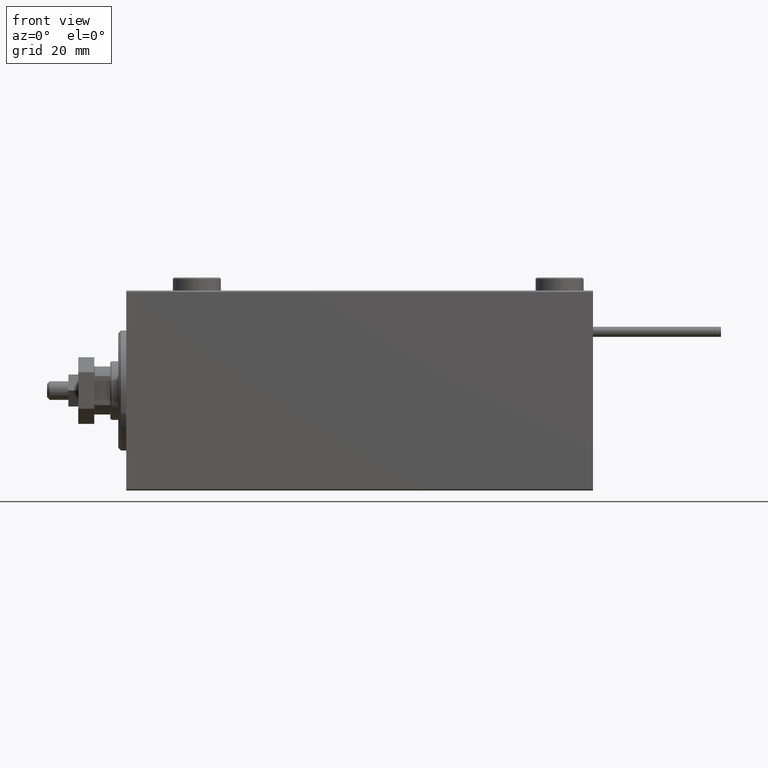
[diagram: clean part render]
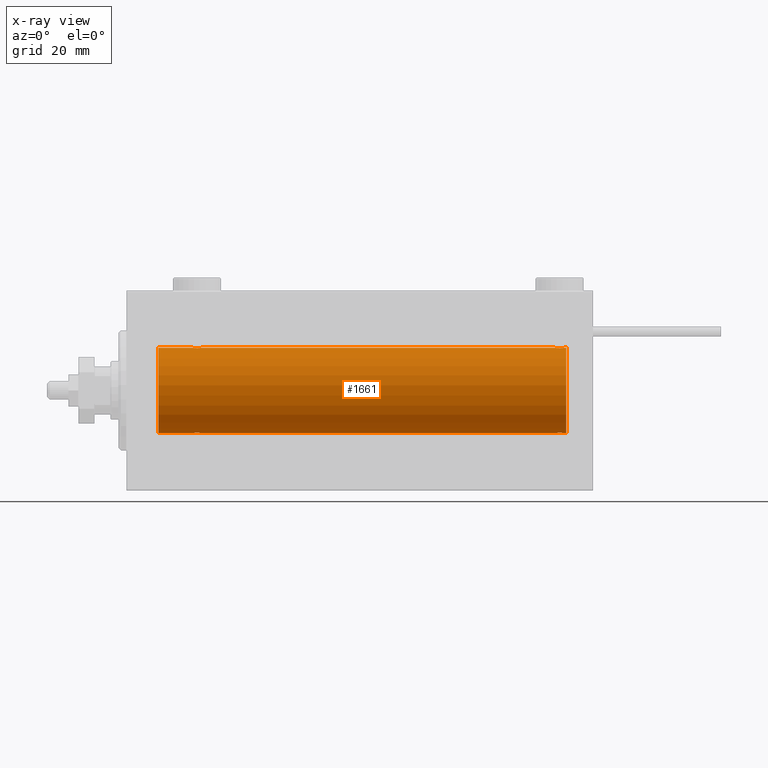
[diagram: x-ray — body ghosted, one internal face saturated and labeled with its STEP entity id]
A machine part, front view, then the same camera in x-ray: the body is ghosted and one INTERNAL B-rep face — a face not visible from any outside direction — is saturated and labeled: STEP entity #1661.
In plain terms, the highlighted cylindrical surface (partial cylindrical patch) has radius 16 mm, axis along (-1, -0, -0).
Its self-contained STEP definition (entity closure, byte-faithful):
#155 = VECTOR ( 'NONE', #7115, 1000.000000000000000 ) ;
#264 = CARTESIAN_POINT ( 'NONE',  ( 27.01937114547927266, -1.935780515549989422, -15.88248768234623221 ) ) ;
#759 = DIRECTION ( 'NONE',  ( 0.000000000000000000, 0.000000000000000000, 1.000000000000000000 ) ) ;
#773 = CARTESIAN_POINT ( 'NONE',  ( 24.75321871145306218, -1.008257970366812417, -15.97001510549667458 ) ) ;
#1006 = CARTESIAN_POINT ( 'NONE',  ( 165.0000000000000000, 0.000000000000000000, 0.000000000000000000 ) ) ;
#1203 = EDGE_CURVE ( 'NONE', #10695, #19739, #38622, .T. ) ;
#1474 = CARTESIAN_POINT ( 'NONE',  ( 163.8210433480340384, -1.507256214862771060, 15.92911555180481820 ) ) ;
#1533 = CARTESIAN_POINT ( 'NONE',  ( 25.49921634246595303, -1.736521253711143853, -15.90565326803670665 ) ) ;
#1534 = CARTESIAN_POINT ( 'NONE',  ( 25.17695155286791930, -1.505501573616972122, 15.92928245046054769 ) ) ;
#1661 = ADVANCED_FACE ( 'NONE', ( #44287 ), #40872, .F. ) ;
#1787 = CARTESIAN_POINT ( 'NONE',  ( 26.36633336824380436, -1.999904855391106295, 15.87451985347842687 ) ) ;
#1949 = CARTESIAN_POINT ( 'NONE',  ( 12.00000000000001066, 0.000000000000000000, 0.000000000000000000 ) ) ;
#2148 = DIRECTION ( 'NONE',  ( -1.000000000000000000, -0.000000000000000000, -0.000000000000000000 ) ) ;
#2457 = DIRECTION ( 'NONE',  ( -1.000000000000000000, 0.000000000000000000, 0.000000000000000000 ) ) ;
#2697 = CARTESIAN_POINT ( 'NONE',  ( 161.1769515528679051, -1.505501573616956357, 15.92928245046055302 ) ) ;
#2929 = CARTESIAN_POINT ( 'NONE',  ( 165.0000000000000000, 1.959434878635765131E-15, -16.00000000000000000 ) ) ;
#2955 = CARTESIAN_POINT ( 'NONE',  ( 162.7608282034936167, -1.987201773464429388, 15.87613558886576115 ) ) ;
#3186 = CARTESIAN_POINT ( 'NONE',  ( 24.50000000000000000, -2.103177090749212087E-15, -16.00000000000000000 ) ) ;
#3281 = CARTESIAN_POINT ( 'NONE',  ( 160.5532599530435789, -0.5272875822567044679, -15.99312147175147025 ) ) ;
#3540 = CARTESIAN_POINT ( 'NONE',  ( 163.5032078479131314, -1.735114343256374925, -15.90580722143557857 ) ) ;
#3746 = EDGE_CURVE ( 'NONE', #30935, #28618, #25974, .T. ) ;
#4464 = DIRECTION ( 'NONE',  ( -1.000000000000000000, 0.000000000000000000, 0.000000000000000000 ) ) ;
#4629 = ORIENTED_EDGE ( 'NONE', *, *, #27147, .T. ) ;
#4646 = VECTOR ( 'NONE', #2148, 1000.000000000000000 ) ;
#4887 = LINE ( 'NONE', #24930, #32714 ) ;
#4933 = CARTESIAN_POINT ( 'NONE',  ( 24.55325995304360376, -0.5272875822566845949, -15.99312147175147025 ) ) ;
#5176 = DIRECTION ( 'NONE',  ( -1.000000000000000000, -0.000000000000000000, -0.000000000000000000 ) ) ;
#5193 = CARTESIAN_POINT ( 'NONE',  ( 27.71821872840284584, -1.591545514129669270, 15.92081325887754595 ) ) ;
#5442 = CARTESIAN_POINT ( 'NONE',  ( 28.24678128854693426, -1.008257970366811529, 15.97001510549667103 ) ) ;
#5638 = CARTESIAN_POINT ( 'NONE',  ( 162.2362953712182332, -1.986819684797419550, 15.87618369521984185 ) ) ;
#5700 = CARTESIAN_POINT ( 'NONE',  ( 25.61407850031505617, -1.797863738508696851, -15.89874935709250892 ) ) ;
#5701 = CARTESIAN_POINT ( 'NONE',  ( 27.14376670717340900, -1.898087287925299016, 15.88709570026284545 ) ) ;
#5794 = VERTEX_POINT ( 'NONE', #42646 ) ;
#5983 = EDGE_CURVE ( 'NONE', #20171, #41998, #30065, .T. ) ;
#6371 = VERTEX_POINT ( 'NONE', #46260 ) ;
#6596 = CARTESIAN_POINT ( 'NONE',  ( 160.7518337299378572, -1.005876079953896607, 15.97016854943970188 ) ) ;
#7115 = DIRECTION ( 'NONE',  ( -1.000000000000000000, -0.000000000000000000, -0.000000000000000000 ) ) ;
#7194 = CARTESIAN_POINT ( 'NONE',  ( 160.9023686404280227, -1.231048876942829384, -15.95364199493483959 ) ) ;
#7318 = CARTESIAN_POINT ( 'NONE',  ( 27.50320784791317053, -1.735114343256361158, -15.90580722143557146 ) ) ;
#7370 = CARTESIAN_POINT ( 'NONE',  ( 165.0000000000000000, 0.000000000000000000, 16.00000000000000000 ) ) ;
#7960 = CARTESIAN_POINT ( 'NONE',  ( 161.6140785003150029, -1.797863738508707954, -15.89874935709249826 ) ) ;
#8849 = CARTESIAN_POINT ( 'NONE',  ( 26.63080408576579927, -2.000094120337576609, 15.87449600834271735 ) ) ;
#9288 = CARTESIAN_POINT ( 'NONE',  ( 160.9006141867461679, -1.228793614424102731, 15.95381972293797013 ) ) ;
#9612 = CARTESIAN_POINT ( 'NONE',  ( 25.17895665196595090, -1.507256214862784161, -15.92911555180481820 ) ) ;
#10068 = CARTESIAN_POINT ( 'NONE',  ( 164.4999999999999716, -8.631112562223475732E-16, 16.00000000000000000 ) ) ;
#10695 = VERTEX_POINT ( 'NONE', #38131 ) ;
#11035 = CARTESIAN_POINT ( 'NONE',  ( 163.5007836575340718, -1.736521253711141854, 15.90565326803671731 ) ) ;
#11100 = CARTESIAN_POINT ( 'NONE',  ( 161.2817812715971115, -1.591545514129687922, -15.92081325887754417 ) ) ;
#11363 = CARTESIAN_POINT ( 'NONE',  ( 161.8562332928265732, -1.898087287925310562, -15.88709570026284723 ) ) ;
#12253 = CARTESIAN_POINT ( 'NONE',  ( 27.38846140829280529, -1.796613193944151865, -15.89889131367403330 ) ) ;
#12283 = ORIENTED_EDGE ( 'NONE', *, *, #47297, .T. ) ;
#12794 = DIRECTION ( 'NONE',  ( 0.000000000000000000, 0.000000000000000000, 1.000000000000000000 ) ) ;
#13016 = CARTESIAN_POINT ( 'NONE',  ( 24.50000000000000000, -2.103177090749212087E-15, -16.00000000000000000 ) ) ;
#13017 = CARTESIAN_POINT ( 'NONE',  ( 25.61153859170719471, -1.796613193944152531, 15.89889131367403685 ) ) ;
#13472 = CARTESIAN_POINT ( 'NONE',  ( 164.4467400469563358, -0.5272875822566840398, 15.99312147175147025 ) ) ;
#13566 = ORIENTED_EDGE ( 'NONE', *, *, #5983, .F. ) ;
#13935 = DIRECTION ( 'NONE',  ( -1.000000000000000000, -0.000000000000000000, -0.000000000000000000 ) ) ;
#14943 = CARTESIAN_POINT ( 'NONE',  ( 162.6308040857657318, -2.000094120337574388, 15.87449600834271379 ) ) ;
#15009 = CARTESIAN_POINT ( 'NONE',  ( 163.7202803347841211, -1.589957129871039099, -15.92097237843275259 ) ) ;
#15445 = DIRECTION ( 'NONE',  ( -1.000000000000000000, -0.000000000000000000, -0.000000000000000000 ) ) ;
#15740 = EDGE_CURVE ( 'NONE', #19739, #37125, #32137, .T. ) ;
#16412 = CARTESIAN_POINT ( 'NONE',  ( 164.4999999999999716, 1.959434851248285101E-15, -16.00000000000000000 ) ) ;
#16626 = DIRECTION ( 'NONE',  ( -1.000000000000000000, -0.000000000000000000, -0.000000000000000000 ) ) ;
#17437 = CARTESIAN_POINT ( 'NONE',  ( 25.49679215208682592, -1.735114343256365155, 15.90580722143557502 ) ) ;
#17707 = CARTESIAN_POINT ( 'NONE',  ( 27.01664001081050870, -1.936513707523810801, 15.88239801746205160 ) ) ;
#17954 = CARTESIAN_POINT ( 'NONE',  ( 24.50000000000000000, -2.739674480787312950E-23, 16.00000000000000000 ) ) ;
#18358 = DIRECTION ( 'NONE',  ( 0.000000000000000000, 0.000000000000000000, 1.000000000000000000 ) ) ;
#18434 = ORIENTED_EDGE ( 'NONE', *, *, #23340, .F. ) ;
#18674 = CARTESIAN_POINT ( 'NONE',  ( 12.00000000000001066, 1.959434878635765131E-15, -16.00000000000000000 ) ) ;
#18809 = EDGE_CURVE ( 'NONE', #6371, #31126, #46985, .T. ) ;
#19282 = LINE ( 'NONE', #31255, #49199 ) ;
#19443 = CARTESIAN_POINT ( 'NONE',  ( 161.4992163424659566, -1.736521253711160728, -15.90565326803670665 ) ) ;
#19739 = VERTEX_POINT ( 'NONE', #46398 ) ;
#19814 = CARTESIAN_POINT ( 'NONE',  ( 28.09938581325380724, -1.228793614424118052, -15.95381972293797013 ) ) ;
#20066 = CARTESIAN_POINT ( 'NONE',  ( 28.24816627006211434, -1.005876079953898827, -15.97016854943970188 ) ) ;
#20154 = B_SPLINE_CURVE_WITH_KNOTS ( 'NONE', 3,
 ( #48721, #36715, #32814, #41401, #44796, #1534, #44555, #17437, #13017, #48478, #41147, #45567, #1787, #8849, #24729, #17707, #5701, #21589, #33319, #5193, #45313, #28894, #5442, #21082, #21335, #37484 ),
 .UNSPECIFIED., .F., .F.,
 ( 4, 2, 2, 2, 2, 2, 2, 2, 2, 2, 2, 2, 4 ),
 ( 0.006259031236593864261, 0.007041222816026932417, 0.007823414395460000573, 0.008214510185176535084, 0.008605605974893067861, 0.008996701764609602373, 0.009387797554326136884, 0.009778893344042669661, 0.01016998913375920244, 0.01056108492347573695, 0.01095218071319226973, 0.01173437229262533008, 0.01251656387205839042 ),
 .UNSPECIFIED. ) ;
#20171 = VERTEX_POINT ( 'NONE', #17954 ) ;
#20354 = CARTESIAN_POINT ( 'NONE',  ( 165.0000000000000000, 0.000000000000000000, 0.000000000000000000 ) ) ;
#20583 = CARTESIAN_POINT ( 'NONE',  ( 24.50000000000000000, -0.2645044045393401544, -16.00000000000000355 ) ) ;
#20831 = CARTESIAN_POINT ( 'NONE',  ( 25.98335998918949841, -1.936513707523808581, -15.88239801746205160 ) ) ;
#21022 = CARTESIAN_POINT ( 'NONE',  ( 164.2467812885469414, -1.008257970366811307, 15.97001510549667813 ) ) ;
#21082 = CARTESIAN_POINT ( 'NONE',  ( 28.44674004695639624, -0.5272875822566822634, 15.99312147175147025 ) ) ;
#21273 = CARTESIAN_POINT ( 'NONE',  ( 161.8536363712954369, -1.897207606501648103, 15.88720136683947182 ) ) ;
#21334 = CARTESIAN_POINT ( 'NONE',  ( 26.36919591423421139, -2.000094120337573944, -15.87449600834271024 ) ) ;
#21335 = CARTESIAN_POINT ( 'NONE',  ( 28.49999999999999289, -0.2645044045393371013, 16.00000000000000000 ) ) ;
#21589 = CARTESIAN_POINT ( 'NONE',  ( 27.38592149968495448, -1.797863738508698628, 15.89874935709251247 ) ) ;
#22373 = ORIENTED_EDGE ( 'NONE', *, *, #1203, .T. ) ;
#22468 = CARTESIAN_POINT ( 'NONE',  ( 163.7182187284028316, -1.591545514129666383, 15.92081325887754595 ) ) ;
#22864 = VERTEX_POINT ( 'NONE', #51059 ) ;
#23199 = ORIENTED_EDGE ( 'NONE', *, *, #18809, .T. ) ;
#23340 = EDGE_CURVE ( 'NONE', #30935, #22864, #42820, .T. ) ;
#23585 = CARTESIAN_POINT ( 'NONE',  ( 162.3691959142342398, -2.000094120337590375, -15.87449600834270313 ) ) ;
#23705 = AXIS2_PLACEMENT_3D ( 'NONE', #1949, #2457, #18358 ) ;
#23727 = CARTESIAN_POINT ( 'NONE',  ( 12.00000000000001066, 0.000000000000000000, 16.00000000000000000 ) ) ;
#24728 = CARTESIAN_POINT ( 'NONE',  ( 25.85623329282658389, -1.898087287925296573, -15.88709570026284190 ) ) ;
#24729 = CARTESIAN_POINT ( 'NONE',  ( 26.76082820349363800, -1.987201773464431387, 15.87613558886576115 ) ) ;
#24930 = CARTESIAN_POINT ( 'NONE',  ( 165.0000000000000000, 0.000000000000000000, 16.00000000000000000 ) ) ;
#24980 = CARTESIAN_POINT ( 'NONE',  ( 26.63366663175619209, -1.999904855391104963, -15.87451985347842687 ) ) ;
#25435 = CARTESIAN_POINT ( 'NONE',  ( 163.0166400108104767, -1.936513707523809469, 15.88239801746205160 ) ) ;
#25974 = B_SPLINE_CURVE_WITH_KNOTS ( 'NONE', 3,
 ( #42297, #37163, #41343, #6596, #9288, #2697, #38649, #26934, #42834, #21273, #50645, #5638, #37420, #14943, #2955, #25435, #46740, #36913, #11035, #22468, #1474, #34488, #21022, #13472, #38384, #50380 ),
 .UNSPECIFIED., .F., .F.,
 ( 4, 2, 2, 2, 2, 2, 2, 2, 2, 2, 2, 2, 4 ),
 ( 0.006259031236593863394, 0.007041222816026929815, 0.007823414395459997103, 0.008214510185176529880, 0.008605605974893064392, 0.008996701764609597168, 0.009387797554326129945, 0.009778893344042664457, 0.01016998913375919723, 0.01056108492347573174, 0.01095218071319226452, 0.01173437229262533008, 0.01251656387205839563 ),
 .UNSPECIFIED. ) ;
#26414 = VECTOR ( 'NONE', #13935, 1000.000000000000000 ) ;
#26721 = CARTESIAN_POINT ( 'NONE',  ( 163.3884614082928124, -1.796613193944159637, -15.89889131367402975 ) ) ;
#26934 = CARTESIAN_POINT ( 'NONE',  ( 161.4967921520867549, -1.735114343256357161, 15.90580722143557502 ) ) ;
#27124 = CARTESIAN_POINT ( 'NONE',  ( 27.72028033478411402, -1.589957129871026664, -15.92097237843274549 ) ) ;
#27147 = EDGE_CURVE ( 'NONE', #20171, #22864, #20154, .T. ) ;
#27168 = CARTESIAN_POINT ( 'NONE',  ( 165.0000000000000000, 1.959434878635765131E-15, -16.00000000000000000 ) ) ;
#27380 = CARTESIAN_POINT ( 'NONE',  ( 28.44751141031268915, -0.5244724041436299444, -15.99321727742820975 ) ) ;
#27508 = CARTESIAN_POINT ( 'NONE',  ( 161.9833599891895233, -1.936513707523834338, -15.88239801746204805 ) ) ;
#27764 = CARTESIAN_POINT ( 'NONE',  ( 160.7532187114530586, -1.008257970366834178, -15.97001510549667458 ) ) ;
#28149 = CARTESIAN_POINT ( 'NONE',  ( 26.76370462878176326, -1.986819684797417551, -15.87618369521984185 ) ) ;
#28427 = VECTOR ( 'NONE', #15445, 1000.000000000000000 ) ;
#28618 = VERTEX_POINT ( 'NONE', #10068 ) ;
#28677 = VERTEX_POINT ( 'NONE', #18674 ) ;
#28894 = CARTESIAN_POINT ( 'NONE',  ( 28.09763135957198088, -1.231048876942798520, 15.95364199493483071 ) ) ;
#30065 = LINE ( 'NONE', #41290, #26414 ) ;
#30349 = AXIS2_PLACEMENT_3D ( 'NONE', #20354, #4464, #12794 ) ;
#30409 = ORIENTED_EDGE ( 'NONE', *, *, #45083, .F. ) ;
#30887 = CARTESIAN_POINT ( 'NONE',  ( 163.1463636287045631, -1.897207606501654764, -15.88720136683947537 ) ) ;
#30935 = VERTEX_POINT ( 'NONE', #45361 ) ;
#31126 = VERTEX_POINT ( 'NONE', #16412 ) ;
#31155 = CARTESIAN_POINT ( 'NONE',  ( 164.4475114103126430, -0.5244724041436316098, -15.99321727742820975 ) ) ;
#31255 = CARTESIAN_POINT ( 'NONE',  ( 165.0000000000000000, 1.959434878635765131E-15, -16.00000000000000000 ) ) ;
#31287 = CARTESIAN_POINT ( 'NONE',  ( 28.50000000000000000, -0.2611263091397181824, -16.00000000000000000 ) ) ;
#31414 = CARTESIAN_POINT ( 'NONE',  ( 164.5000000000000284, -0.2611263091397180158, -16.00000000000000000 ) ) ;
#32137 = B_SPLINE_CURVE_WITH_KNOTS ( 'NONE', 3,
 ( #47450, #31287, #27380, #20066, #19814, #35698, #27124, #7318, #12253, #35956, #264, #28149, #24980, #21334, #41400, #20831, #24728, #5700, #1533, #40638, #9612, #44554, #773, #4933, #20583, #13016 ),
 .UNSPECIFIED., .F., .F.,
 ( 4, 2, 2, 2, 2, 2, 2, 2, 2, 2, 2, 2, 4 ),
 ( 0.006259031236593880741, 0.007041222816026947162, 0.007823414395460012716, 0.008214510185176545493, 0.008605605974893078269, 0.008996701764609611046, 0.009387797554326143823, 0.009778893344042676600, 0.01016998913375920938, 0.01056108492347574215, 0.01095218071319227493, 0.01173437229262534742, 0.01251656387205841818 ),
 .UNSPECIFIED. ) ;
#32714 = VECTOR ( 'NONE', #16626, 1000.000000000000000 ) ;
#32814 = CARTESIAN_POINT ( 'NONE',  ( 24.55248858968731440, -0.5244724041436320539, 15.99321727742821331 ) ) ;
#32852 = CIRCLE ( 'NONE', #30349, 16.00000000000000000 ) ;
#33319 = CARTESIAN_POINT ( 'NONE',  ( 27.50078365753405052, -1.736521253711144519, 15.90565326803671020 ) ) ;
#33627 = EDGE_CURVE ( 'NONE', #37125, #28677, #19282, .T. ) ;
#33632 = B_SPLINE_CURVE_WITH_KNOTS ( 'NONE', 3,
 ( #47326, #31414, #31155, #42626, #38983, #43399, #15009, #3540, #26721, #30887, #50975, #43655, #46529, #23585, #46808, #27508, #11363, #7960, #19443, #11100, #42897, #7194, #27764, #3281, #39489, #34812 ),
 .UNSPECIFIED., .F., .F.,
 ( 4, 2, 2, 2, 2, 2, 2, 2, 2, 2, 2, 2, 4 ),
 ( 0.006259031236593847781, 0.007041222816026931550, 0.007823414395460014450, 0.008214510185176555901, 0.008605605974893097351, 0.008996701764609638802, 0.009387797554326181987, 0.009778893344042723437, 0.01016998913375926489, 0.01056108492347580634, 0.01095218071319234779, 0.01173437229262537171, 0.01251656387205839736 ),
 .UNSPECIFIED. ) ;
#34488 = CARTESIAN_POINT ( 'NONE',  ( 164.0976313595720057, -1.231048876942786308, 15.95364199493483959 ) ) ;
#34812 = CARTESIAN_POINT ( 'NONE',  ( 160.4999999999999716, -2.238448963845692285E-14, -16.00000000000000000 ) ) ;
#35698 = CARTESIAN_POINT ( 'NONE',  ( 27.82304844713207004, -1.505501573616970568, -15.92928245046055302 ) ) ;
#35956 = CARTESIAN_POINT ( 'NONE',  ( 27.14636362870458086, -1.897207606501645438, -15.88720136683947182 ) ) ;
#36715 = CARTESIAN_POINT ( 'NONE',  ( 24.50000000000000000, -0.2611263091397195146, 15.99999999999999645 ) ) ;
#36913 = CARTESIAN_POINT ( 'NONE',  ( 163.3859214996849119, -1.797863738508690856, 15.89874935709251247 ) ) ;
#37125 = VERTEX_POINT ( 'NONE', #3186 ) ;
#37163 = CARTESIAN_POINT ( 'NONE',  ( 160.4999999999999716, -0.2611263091397189040, 16.00000000000000000 ) ) ;
#37420 = CARTESIAN_POINT ( 'NONE',  ( 162.3663333682438008, -1.999904855391104075, 15.87451985347842687 ) ) ;
#37484 = CARTESIAN_POINT ( 'NONE',  ( 28.49999999999999645, -1.179009551424829015E-15, 16.00000000000000000 ) ) ;
#37821 = CIRCLE ( 'NONE', #23705, 16.00000000000000000 ) ;
#38131 = CARTESIAN_POINT ( 'NONE',  ( 160.4999999999999716, -2.238448963845692285E-14, -16.00000000000000000 ) ) ;
#38384 = CARTESIAN_POINT ( 'NONE',  ( 164.4999999999999147, -0.2645044045393383225, 16.00000000000000000 ) ) ;
#38622 = LINE ( 'NONE', #2929, #4646 ) ;
#38649 = CARTESIAN_POINT ( 'NONE',  ( 161.2797196652158505, -1.589957129871021779, 15.92097237843274193 ) ) ;
#38983 = CARTESIAN_POINT ( 'NONE',  ( 164.0993858132537753, -1.228793614424117386, -15.95381972293797013 ) ) ;
#39026 = ORIENTED_EDGE ( 'NONE', *, *, #15740, .T. ) ;
#39489 = CARTESIAN_POINT ( 'NONE',  ( 160.5000000000000000, -0.2645044045393602494, -16.00000000000000000 ) ) ;
#40638 = CARTESIAN_POINT ( 'NONE',  ( 25.28178127159715061, -1.591545514129670158, -15.92081325887754595 ) ) ;
#40872 = CYLINDRICAL_SURFACE ( 'NONE', #45393, 16.00000000000000000 ) ;
#41147 = CARTESIAN_POINT ( 'NONE',  ( 25.98062885452073090, -1.935780515549991199, 15.88248768234623576 ) ) ;
#41290 = CARTESIAN_POINT ( 'NONE',  ( 165.0000000000000000, 0.000000000000000000, 16.00000000000000000 ) ) ;
#41343 = CARTESIAN_POINT ( 'NONE',  ( 160.5524885896873002, -0.5244724041436266138, 15.99321727742820975 ) ) ;
#41400 = CARTESIAN_POINT ( 'NONE',  ( 26.23917179650635845, -1.987201773464428500, -15.87613558886575760 ) ) ;
#41401 = CARTESIAN_POINT ( 'NONE',  ( 24.75183372993787856, -1.005876079953901270, 15.97016854943969832 ) ) ;
#41613 = EDGE_CURVE ( 'NONE', #5794, #28618, #4887, .T. ) ;
#41998 = VERTEX_POINT ( 'NONE', #23727 ) ;
#42297 = CARTESIAN_POINT ( 'NONE',  ( 160.4999999999999716, -2.738806733791569837E-23, 16.00000000000000000 ) ) ;
#42626 = CARTESIAN_POINT ( 'NONE',  ( 164.2481662700621428, -1.005876079953903268, -15.97016854943969832 ) ) ;
#42646 = CARTESIAN_POINT ( 'NONE',  ( 165.0000000000000000, 0.000000000000000000, 16.00000000000000000 ) ) ;
#42820 = LINE ( 'NONE', #7370, #155 ) ;
#42834 = CARTESIAN_POINT ( 'NONE',  ( 161.6115385917072160, -1.796613193944155196, 15.89889131367403330 ) ) ;
#42897 = CARTESIAN_POINT ( 'NONE',  ( 161.1789566519659331, -1.507256214862809918, -15.92911555180481464 ) ) ;
#42992 = ORIENTED_EDGE ( 'NONE', *, *, #45568, .T. ) ;
#43399 = CARTESIAN_POINT ( 'NONE',  ( 163.8230484471320949, -1.505501573616972344, -15.92928245046055657 ) ) ;
#43655 = CARTESIAN_POINT ( 'NONE',  ( 162.7637046287817668, -1.986819684797435759, -15.87618369521983830 ) ) ;
#44287 = FACE_OUTER_BOUND ( 'NONE', #45736, .T. ) ;
#44554 = CARTESIAN_POINT ( 'NONE',  ( 24.90236864042802978, -1.231048876942801185, -15.95364199493483959 ) ) ;
#44555 = CARTESIAN_POINT ( 'NONE',  ( 25.27971966521589664, -1.589957129871031105, 15.92097237843274549 ) ) ;
#44796 = CARTESIAN_POINT ( 'NONE',  ( 24.90061418674619986, -1.228793614424120717, 15.95381972293797013 ) ) ;
#45083 = EDGE_CURVE ( 'NONE', #6371, #5794, #32852, .T. ) ;
#45151 = ORIENTED_EDGE ( 'NONE', *, *, #33627, .T. ) ;
#45313 = CARTESIAN_POINT ( 'NONE',  ( 27.82104334803405266, -1.507256214862782606, 15.92911555180481464 ) ) ;
#45361 = CARTESIAN_POINT ( 'NONE',  ( 160.4999999999999716, -2.738806733791569837E-23, 16.00000000000000000 ) ) ;
#45393 = AXIS2_PLACEMENT_3D ( 'NONE', #1006, #5176, #759 ) ;
#45567 = CARTESIAN_POINT ( 'NONE',  ( 26.23629537121825095, -1.986819684797419994, 15.87618369521984185 ) ) ;
#45568 = EDGE_CURVE ( 'NONE', #28677, #41998, #37821, .T. ) ;
#45736 = EDGE_LOOP ( 'NONE', ( #30409, #23199, #12283, #22373, #39026, #45151, #42992, #13566, #4629, #18434, #48187, #46113 ) ) ;
#46113 = ORIENTED_EDGE ( 'NONE', *, *, #41613, .F. ) ;
#46260 = CARTESIAN_POINT ( 'NONE',  ( 165.0000000000000000, 1.959434878635765131E-15, -16.00000000000000000 ) ) ;
#46372 = DIRECTION ( 'NONE',  ( -1.000000000000000000, -0.000000000000000000, -0.000000000000000000 ) ) ;
#46398 = CARTESIAN_POINT ( 'NONE',  ( 28.49999999999999645, 1.959434851239213200E-15, -16.00000000000000000 ) ) ;
#46529 = CARTESIAN_POINT ( 'NONE',  ( 162.6336666317561708, -1.999904855391120506, -15.87451985347842331 ) ) ;
#46740 = CARTESIAN_POINT ( 'NONE',  ( 163.1437667071733983, -1.898087287925293021, 15.88709570026284723 ) ) ;
#46808 = CARTESIAN_POINT ( 'NONE',  ( 162.2391717965064117, -1.987201773464449595, -15.87613558886576115 ) ) ;
#46985 = LINE ( 'NONE', #27168, #28427 ) ;
#47297 = EDGE_CURVE ( 'NONE', #31126, #10695, #33632, .T. ) ;
#47326 = CARTESIAN_POINT ( 'NONE',  ( 164.4999999999999716, 1.959434851248285101E-15, -16.00000000000000000 ) ) ;
#47450 = CARTESIAN_POINT ( 'NONE',  ( 28.49999999999999645, 1.959434851239213200E-15, -16.00000000000000000 ) ) ;
#48187 = ORIENTED_EDGE ( 'NONE', *, *, #3746, .T. ) ;
#48478 = CARTESIAN_POINT ( 'NONE',  ( 25.85363637129542269, -1.897207606501645438, 15.88720136683947537 ) ) ;
#48721 = CARTESIAN_POINT ( 'NONE',  ( 24.50000000000000000, -2.739674480787312950E-23, 16.00000000000000000 ) ) ;
#49199 = VECTOR ( 'NONE', #46372, 1000.000000000000000 ) ;
#50380 = CARTESIAN_POINT ( 'NONE',  ( 164.4999999999999716, -8.631112562223475732E-16, 16.00000000000000000 ) ) ;
#50645 = CARTESIAN_POINT ( 'NONE',  ( 161.9806288545207451, -1.935780515549992087, 15.88248768234623221 ) ) ;
#50975 = CARTESIAN_POINT ( 'NONE',  ( 163.0193711454792549, -1.935780515550008962, -15.88248768234623576 ) ) ;
#51059 = CARTESIAN_POINT ( 'NONE',  ( 28.49999999999999645, -1.179009551424829015E-15, 16.00000000000000000 ) ) ;